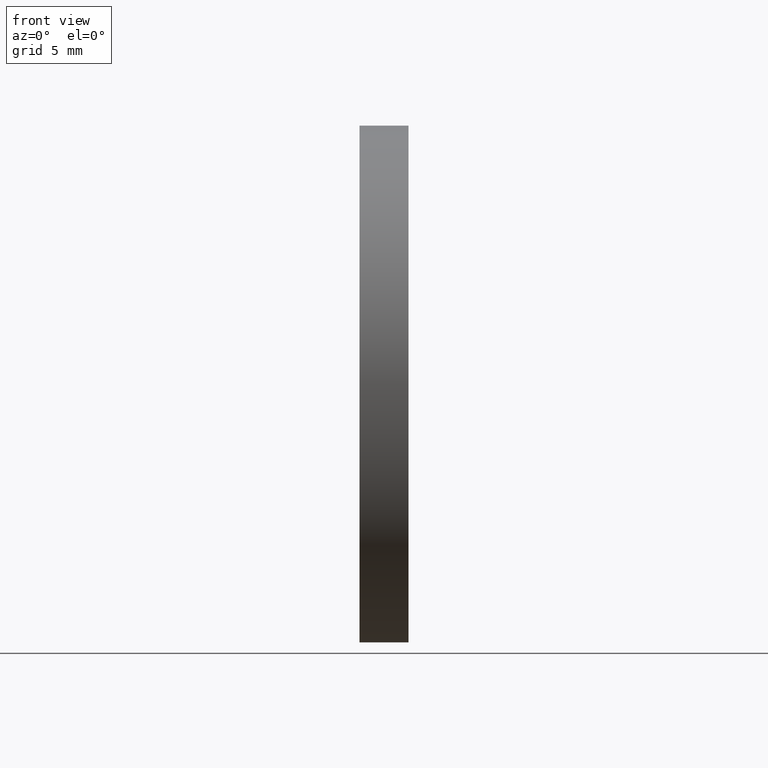
[diagram: clean part render]
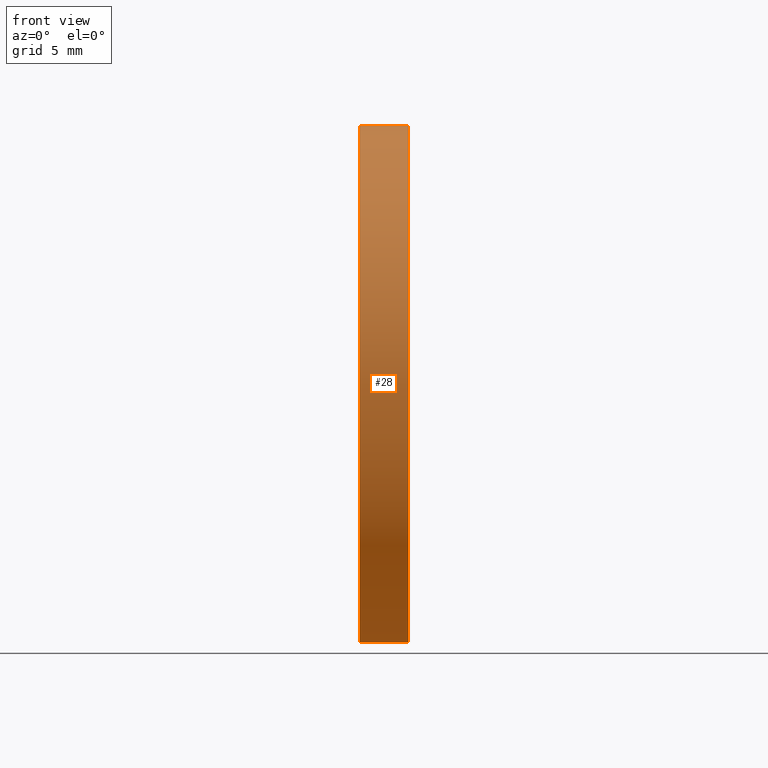
[diagram: same view with one face highlighted and labeled with its STEP entity id]
A machine part, front view. The second image highlights one B-rep face of the part: STEP entity #28.
In plain terms, the highlighted cylindrical surface (partial cylindrical patch) has radius 12.5 mm, axis along (-1, -0, -0).
Its self-contained STEP definition (entity closure, byte-faithful):
#2 = DIRECTION ( 'NONE',  ( -1.000000000000000000, -0.0000000000000000000, -0.0000000000000000000 ) ) ;
#4 = ORIENTED_EDGE ( 'NONE', *, *, #145, .T. ) ;
#7 = CARTESIAN_POINT ( 'NONE',  ( 57.53233705252611700, 32.61076812922678400, 12.49999999999999600 ) ) ;
#8 = CARTESIAN_POINT ( 'NONE',  ( 57.53233705252611700, 32.61076812922678400, 0.0000000000000000000 ) ) ;
#9 = DIRECTION ( 'NONE',  ( -1.000000000000000000, -0.0000000000000000000, -0.0000000000000000000 ) ) ;
#12 = VERTEX_POINT ( 'NONE', #57 ) ;
#26 = VERTEX_POINT ( 'NONE', #126 ) ;
#27 = EDGE_CURVE ( 'NONE', #12, #44, #76, .T. ) ;
#28 = ADVANCED_FACE ( 'NONE', ( #90 ), #150, .T. ) ;
#31 = AXIS2_PLACEMENT_3D ( 'NONE', #8, #157, #94 ) ;
#35 = VECTOR ( 'NONE', #9, 1000.000000000000000 ) ;
#36 = EDGE_LOOP ( 'NONE', ( #52, #154, #4, #99 ) ) ;
#44 = VERTEX_POINT ( 'NONE', #7 ) ;
#47 = EDGE_CURVE ( 'NONE', #26, #12, #59, .T. ) ;
#50 = DIRECTION ( 'NONE',  ( -1.000000000000000000, -0.0000000000000000000, -0.0000000000000000000 ) ) ;
#52 = ORIENTED_EDGE ( 'NONE', *, *, #47, .F. ) ;
#55 = DIRECTION ( 'NONE',  ( 0.0000000000000000000, 0.0000000000000000000, 1.000000000000000000 ) ) ;
#57 = CARTESIAN_POINT ( 'NONE',  ( 57.53233705252611700, 32.61076812922678400, -12.49999999999999600 ) ) ;
#59 = LINE ( 'NONE', #78, #35 ) ;
#70 = AXIS2_PLACEMENT_3D ( 'NONE', #158, #72, #55 ) ;
#72 = DIRECTION ( 'NONE',  ( -1.000000000000000000, -0.0000000000000000000, -0.0000000000000000000 ) ) ;
#76 = CIRCLE ( 'NONE', #31, 12.49999999999999600 ) ;
#78 = CARTESIAN_POINT ( 'NONE',  ( 56.10091507999716500, 32.61076812922678400, -12.49999999999999600 ) ) ;
#82 = VECTOR ( 'NONE', #50, 1000.000000000000000 ) ;
#90 = FACE_OUTER_BOUND ( 'NONE', #36, .T. ) ;
#94 = DIRECTION ( 'NONE',  ( 0.0000000000000000000, 0.0000000000000000000, 1.000000000000000000 ) ) ;
#99 = ORIENTED_EDGE ( 'NONE', *, *, #27, .F. ) ;
#102 = DIRECTION ( 'NONE',  ( 0.0000000000000000000, 0.0000000000000000000, 1.000000000000000000 ) ) ;
#109 = LINE ( 'NONE', #152, #82 ) ;
#111 = CARTESIAN_POINT ( 'NONE',  ( 59.89753409982904500, 32.61076812922678400, 0.0000000000000000000 ) ) ;
#118 = VERTEX_POINT ( 'NONE', #136 ) ;
#126 = CARTESIAN_POINT ( 'NONE',  ( 59.89753409982903800, 32.61076812922678400, -12.49999999999998000 ) ) ;
#128 = AXIS2_PLACEMENT_3D ( 'NONE', #111, #2, #102 ) ;
#136 = CARTESIAN_POINT ( 'NONE',  ( 59.89753409982903800, 32.61076812922678400, 12.49999999999998000 ) ) ;
#141 = CIRCLE ( 'NONE', #128, 12.49999999999999600 ) ;
#145 = EDGE_CURVE ( 'NONE', #118, #44, #109, .T. ) ;
#150 = CYLINDRICAL_SURFACE ( 'NONE', #70, 12.49999999999999600 ) ;
#152 = CARTESIAN_POINT ( 'NONE',  ( 56.10091507999716500, 32.61076812922678400, 12.49999999999999600 ) ) ;
#154 = ORIENTED_EDGE ( 'NONE', *, *, #165, .T. ) ;
#157 = DIRECTION ( 'NONE',  ( -1.000000000000000000, -0.0000000000000000000, -0.0000000000000000000 ) ) ;
#158 = CARTESIAN_POINT ( 'NONE',  ( 56.10091507999716500, 32.61076812922678400, 0.0000000000000000000 ) ) ;
#165 = EDGE_CURVE ( 'NONE', #26, #118, #141, .T. ) ;